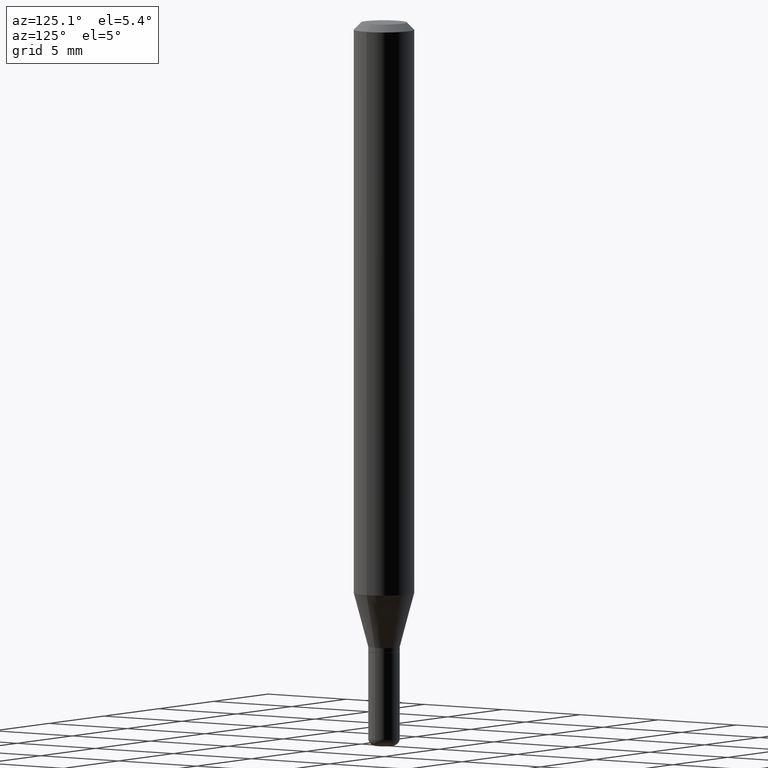
[diagram: clean part render]
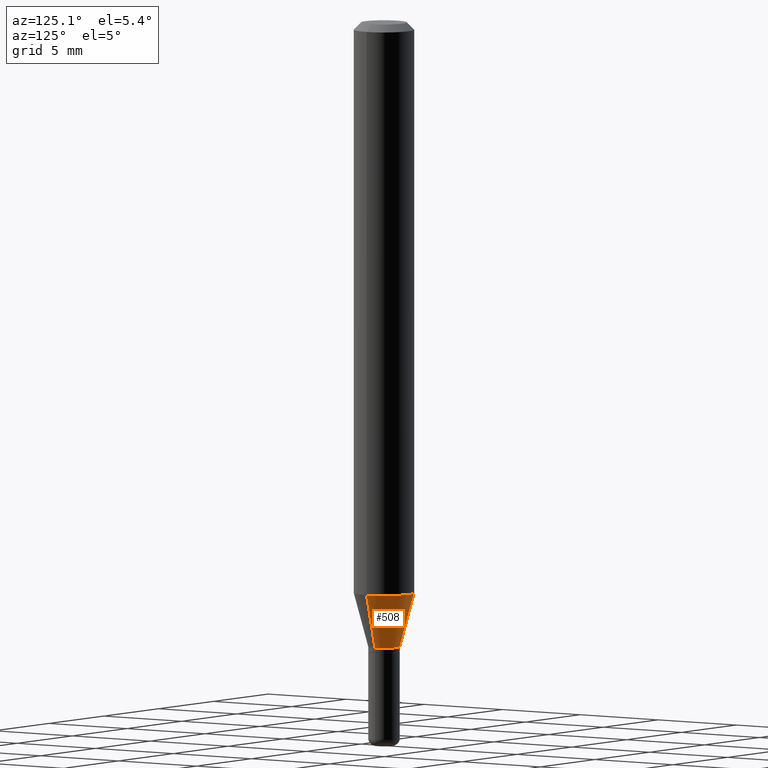
[diagram: same view with one face highlighted and labeled with its STEP entity id]
A machine part, auxiliary view. The second image highlights one B-rep face of the part: STEP entity #508.
In plain terms, the highlighted conical surface has half-angle 15 deg.
Its self-contained STEP definition (entity closure, byte-faithful):
#2 = EDGE_LOOP ( 'NONE', ( #177, #427, #181, #397 ) ) ;
#4 = CARTESIAN_POINT ( 'NONE',  ( 2.893083689019520084E-29, -4.130556761294637105E-15, -1.183038475772933751 ) ) ;
#23 = AXIS2_PLACEMENT_3D ( 'NONE', #4, #503, #116 ) ;
#54 = CARTESIAN_POINT ( 'NONE',  ( 0.06250000000000000000, -4.566991928650029563E-15, -1.183038475772933751 ) ) ;
#57 = CARTESIAN_POINT ( 'NONE',  ( -0.03249999999999998029, -3.988504748062208899E-15, -1.295000000000000151 ) ) ;
#80 = CARTESIAN_POINT ( 'NONE',  ( 3.166882104009752139E-29, -4.521468333801874892E-15, -1.295000000000000151 ) ) ;
#82 = VERTEX_POINT ( 'NONE', #197 ) ;
#88 = VECTOR ( 'NONE', #114, 39.37007874015748854 ) ;
#110 = CARTESIAN_POINT ( 'NONE',  ( 0.03249999999999998029, -4.748414620826678245E-15, -1.295000000000000151 ) ) ;
#114 = DIRECTION ( 'NONE',  ( -0.2588190451025206285, 5.211531920934544731E-15, 0.9659258262890682012 ) ) ;
#116 = DIRECTION ( 'NONE',  ( 1.000000000000000000, -6.982962677686262766E-15, 0.000000000000000000 ) ) ;
#177 = ORIENTED_EDGE ( 'NONE', *, *, #385, .T. ) ;
#178 = DIRECTION ( 'NONE',  ( -2.445468806185136597E-29, 3.491481338843145583E-15, 1.000000000000000000 ) ) ;
#181 = ORIENTED_EDGE ( 'NONE', *, *, #245, .F. ) ;
#197 = CARTESIAN_POINT ( 'NONE',  ( -0.06250000000000000000, -3.686467551444575277E-15, -1.183038475772933751 ) ) ;
#207 = LINE ( 'NONE', #250, #88 ) ;
#236 = CIRCLE ( 'NONE', #301, 0.03249999999999998029 ) ;
#238 = CARTESIAN_POINT ( 'NONE',  ( 3.166882104009752139E-29, -4.521468333801874892E-15, -1.295000000000000151 ) ) ;
#245 = EDGE_CURVE ( 'NONE', #463, #82, #331, .T. ) ;
#250 = CARTESIAN_POINT ( 'NONE',  ( -0.03249999999999998029, -4.290541944679842521E-15, -1.295000000000000151 ) ) ;
#261 = DIRECTION ( 'NONE',  ( 1.000000000000000000, -6.982962677686262766E-15, 0.000000000000000000 ) ) ;
#278 = DIRECTION ( 'NONE',  ( 0.2588190451025206285, 1.565188264969627095E-15, 0.9659258262890682012 ) ) ;
#294 = VECTOR ( 'NONE', #278, 39.37007874015748854 ) ;
#301 = AXIS2_PLACEMENT_3D ( 'NONE', #238, #416, #261 ) ;
#327 = AXIS2_PLACEMENT_3D ( 'NONE', #80, #178, #365 ) ;
#331 = CIRCLE ( 'NONE', #23, 0.06250000000000000000 ) ;
#333 = CONICAL_SURFACE ( 'NONE', #327, 0.03249999999999998029, 0.2617993877991493523 ) ;
#364 = VERTEX_POINT ( 'NONE', #435 ) ;
#365 = DIRECTION ( 'NONE',  ( 1.000000000000000000, -6.982962677686262766E-15, 0.000000000000000000 ) ) ;
#368 = EDGE_CURVE ( 'NONE', #364, #463, #456, .T. ) ;
#385 = EDGE_CURVE ( 'NONE', #364, #387, #236, .T. ) ;
#387 = VERTEX_POINT ( 'NONE', #57 ) ;
#397 = ORIENTED_EDGE ( 'NONE', *, *, #368, .F. ) ;
#416 = DIRECTION ( 'NONE',  ( -2.445468806185136597E-29, 3.491481338843145583E-15, 1.000000000000000000 ) ) ;
#427 = ORIENTED_EDGE ( 'NONE', *, *, #469, .T. ) ;
#435 = CARTESIAN_POINT ( 'NONE',  ( 0.03249999999999998029, -4.748414620826678245E-15, -1.295000000000000151 ) ) ;
#456 = LINE ( 'NONE', #110, #294 ) ;
#463 = VERTEX_POINT ( 'NONE', #54 ) ;
#469 = EDGE_CURVE ( 'NONE', #387, #82, #207, .T. ) ;
#475 = FACE_OUTER_BOUND ( 'NONE', #2, .T. ) ;
#503 = DIRECTION ( 'NONE',  ( -2.445468806185136597E-29, 3.491481338843145583E-15, 1.000000000000000000 ) ) ;
#508 = ADVANCED_FACE ( 'NONE', ( #475 ), #333, .T. ) ;